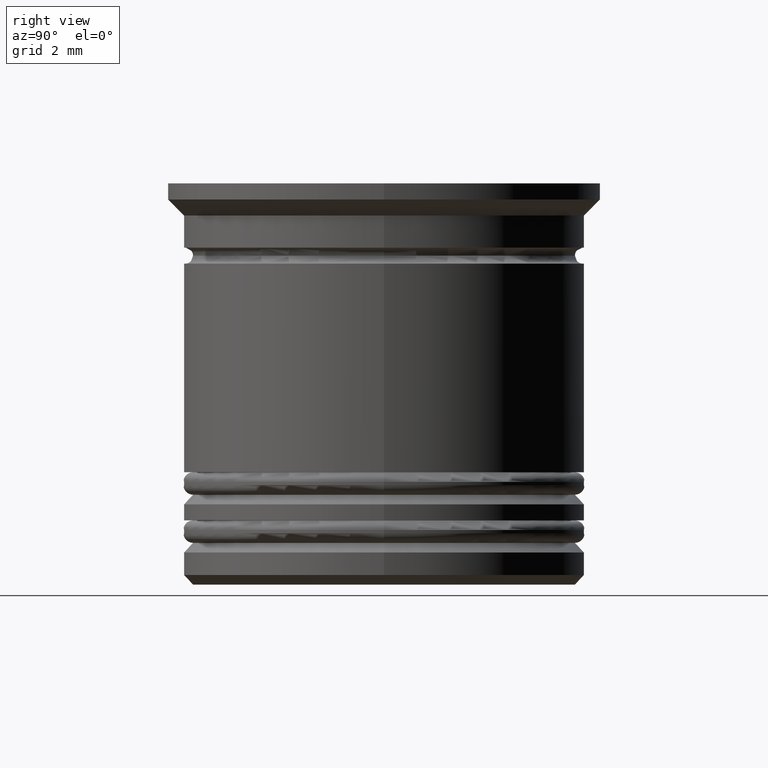
[diagram: clean part render]
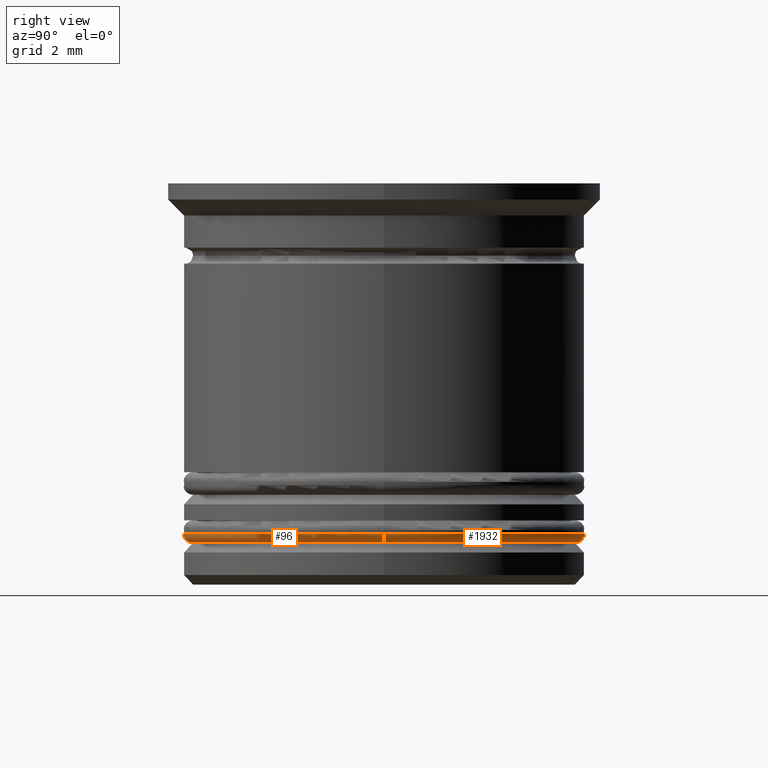
[diagram: same view with one multi-face feature highlighted, each face labeled with its STEP entity id]
A machine part, right view. The highlighted faces form ONE feature: a constant-radius fillet chain: 2 tangent blend faces with common blend radius 0.3 mm. The faces share edges in the B-rep.
Their STEP definitions:
[1] entity #96 (Torus):
#27 = ORIENTED_EDGE ( 'NONE', *, *, #1698, .F. ) ;
#42 = CARTESIAN_POINT ( 'NONE',  ( -6.250000000000000000, 7.654042494670957606E-16, -10.90000000000001101 ) ) ;
#96 = ADVANCED_FACE ( 'NONE', ( #1829 ), #682, .T. ) ;
#160 = DIRECTION ( 'NONE',  ( 0.000000000000000000, 0.000000000000000000, 1.000000000000000000 ) ) ;
#177 = DIRECTION ( 'NONE',  ( 1.000000000000000000, 0.000000000000000000, 0.000000000000000000 ) ) ;
#209 = DIRECTION ( 'NONE',  ( 1.000000000000000000, 0.000000000000000000, 0.000000000000000000 ) ) ;
#263 = AXIS2_PLACEMENT_3D ( 'NONE', #1518, #160, #761 ) ;
#315 = DIRECTION ( 'NONE',  ( 0.000000000000000000, 0.000000000000000000, 1.000000000000000000 ) ) ;
#357 = DIRECTION ( 'NONE',  ( 0.000000000000000000, -1.000000000000000000, 0.000000000000000000 ) ) ;
#399 = VERTEX_POINT ( 'NONE', #932 ) ;
#468 = DIRECTION ( 'NONE',  ( 1.224646799147353207E-16, 1.000000000000000000, -0.000000000000000000 ) ) ;
#495 = EDGE_CURVE ( 'NONE', #1933, #399, #892, .T. ) ;
#511 = CARTESIAN_POINT ( 'NONE',  ( 0.000000000000000000, 0.000000000000000000, -10.90000000000001101 ) ) ;
#588 = CARTESIAN_POINT ( 'NONE',  ( -5.950000000000000178, 7.286648454926751965E-16, -10.90000000000001101 ) ) ;
#616 = CIRCLE ( 'NONE', #1748, 0.2999999999999999334 ) ;
#627 = ORIENTED_EDGE ( 'NONE', *, *, #662, .F. ) ;
#662 = EDGE_CURVE ( 'NONE', #399, #790, #1536, .T. ) ;
#682 = TOROIDAL_SURFACE ( 'NONE', #263, 5.950000000000000178, 0.2999999999999999889 ) ;
#761 = DIRECTION ( 'NONE',  ( 1.000000000000000000, 0.000000000000000000, 0.000000000000000000 ) ) ;
#790 = VERTEX_POINT ( 'NONE', #42 ) ;
#892 = CIRCLE ( 'NONE', #1437, 5.950000000000000178 ) ;
#932 = CARTESIAN_POINT ( 'NONE',  ( -5.950000000000000178, 7.470345474798855279E-16, -11.20000000000000995 ) ) ;
#959 = CIRCLE ( 'NONE', #1544, 6.250000000000000000 ) ;
#984 = EDGE_LOOP ( 'NONE', ( #627, #1595, #1077, #27 ) ) ;
#1077 = ORIENTED_EDGE ( 'NONE', *, *, #1285, .T. ) ;
#1225 = CARTESIAN_POINT ( 'NONE',  ( 6.250000000000000000, 0.000000000000000000, -10.90000000000001101 ) ) ;
#1270 = VERTEX_POINT ( 'NONE', #1225 ) ;
#1285 = EDGE_CURVE ( 'NONE', #1933, #1270, #616, .T. ) ;
#1338 = AXIS2_PLACEMENT_3D ( 'NONE', #588, #468, #1834 ) ;
#1388 = CARTESIAN_POINT ( 'NONE',  ( 5.950000000000000178, 0.000000000000000000, -11.20000000000000995 ) ) ;
#1394 = DIRECTION ( 'NONE',  ( -0.000000000000000000, -0.000000000000000000, -1.000000000000000000 ) ) ;
#1437 = AXIS2_PLACEMENT_3D ( 'NONE', #1696, #1394, #209 ) ;
#1518 = CARTESIAN_POINT ( 'NONE',  ( 0.000000000000000000, 0.000000000000000000, -10.90000000000001101 ) ) ;
#1536 = CIRCLE ( 'NONE', #1338, 0.2999999999999999334 ) ;
#1544 = AXIS2_PLACEMENT_3D ( 'NONE', #511, #315, #177 ) ;
#1590 = DIRECTION ( 'NONE',  ( 0.000000000000000000, 0.000000000000000000, -1.000000000000000000 ) ) ;
#1595 = ORIENTED_EDGE ( 'NONE', *, *, #495, .F. ) ;
#1696 = CARTESIAN_POINT ( 'NONE',  ( 0.000000000000000000, 0.000000000000000000, -11.20000000000000995 ) ) ;
#1698 = EDGE_CURVE ( 'NONE', #790, #1270, #959, .T. ) ;
#1732 = CARTESIAN_POINT ( 'NONE',  ( 5.950000000000000178, 0.000000000000000000, -10.90000000000001101 ) ) ;
#1748 = AXIS2_PLACEMENT_3D ( 'NONE', #1732, #357, #1590 ) ;
#1829 = FACE_OUTER_BOUND ( 'NONE', #984, .T. ) ;
#1834 = DIRECTION ( 'NONE',  ( -1.000000000000000000, 1.224646799147353207E-16, 0.000000000000000000 ) ) ;
#1933 = VERTEX_POINT ( 'NONE', #1388 ) ;
[2] entity #1932 (Torus):
#20 = DIRECTION ( 'NONE',  ( 1.000000000000000000, 0.000000000000000000, 0.000000000000000000 ) ) ;
#42 = CARTESIAN_POINT ( 'NONE',  ( -6.250000000000000000, 7.654042494670957606E-16, -10.90000000000001101 ) ) ;
#166 = CARTESIAN_POINT ( 'NONE',  ( 0.000000000000000000, 0.000000000000000000, -10.90000000000001101 ) ) ;
#357 = DIRECTION ( 'NONE',  ( 0.000000000000000000, -1.000000000000000000, 0.000000000000000000 ) ) ;
#369 = EDGE_CURVE ( 'NONE', #399, #1933, #611, .T. ) ;
#399 = VERTEX_POINT ( 'NONE', #932 ) ;
#468 = DIRECTION ( 'NONE',  ( 1.224646799147353207E-16, 1.000000000000000000, -0.000000000000000000 ) ) ;
#573 = DIRECTION ( 'NONE',  ( -0.000000000000000000, -0.000000000000000000, -1.000000000000000000 ) ) ;
#588 = CARTESIAN_POINT ( 'NONE',  ( -5.950000000000000178, 7.286648454926751965E-16, -10.90000000000001101 ) ) ;
#596 = ORIENTED_EDGE ( 'NONE', *, *, #1105, .F. ) ;
#611 = CIRCLE ( 'NONE', #1370, 5.950000000000000178 ) ;
#615 = DIRECTION ( 'NONE',  ( 0.000000000000000000, 0.000000000000000000, 1.000000000000000000 ) ) ;
#616 = CIRCLE ( 'NONE', #1748, 0.2999999999999999334 ) ;
#643 = ORIENTED_EDGE ( 'NONE', *, *, #1285, .F. ) ;
#662 = EDGE_CURVE ( 'NONE', #399, #790, #1536, .T. ) ;
#790 = VERTEX_POINT ( 'NONE', #42 ) ;
#904 = ORIENTED_EDGE ( 'NONE', *, *, #662, .T. ) ;
#907 = FACE_OUTER_BOUND ( 'NONE', #1052, .T. ) ;
#932 = CARTESIAN_POINT ( 'NONE',  ( -5.950000000000000178, 7.470345474798855279E-16, -11.20000000000000995 ) ) ;
#945 = ORIENTED_EDGE ( 'NONE', *, *, #369, .F. ) ;
#962 = AXIS2_PLACEMENT_3D ( 'NONE', #1990, #615, #20 ) ;
#1033 = DIRECTION ( 'NONE',  ( 1.000000000000000000, 0.000000000000000000, 0.000000000000000000 ) ) ;
#1050 = CIRCLE ( 'NONE', #1182, 6.250000000000000000 ) ;
#1052 = EDGE_LOOP ( 'NONE', ( #945, #904, #596, #643 ) ) ;
#1105 = EDGE_CURVE ( 'NONE', #1270, #790, #1050, .T. ) ;
#1182 = AXIS2_PLACEMENT_3D ( 'NONE', #166, #1333, #1033 ) ;
#1225 = CARTESIAN_POINT ( 'NONE',  ( 6.250000000000000000, 0.000000000000000000, -10.90000000000001101 ) ) ;
#1270 = VERTEX_POINT ( 'NONE', #1225 ) ;
#1285 = EDGE_CURVE ( 'NONE', #1933, #1270, #616, .T. ) ;
#1333 = DIRECTION ( 'NONE',  ( 0.000000000000000000, 0.000000000000000000, 1.000000000000000000 ) ) ;
#1338 = AXIS2_PLACEMENT_3D ( 'NONE', #588, #468, #1834 ) ;
#1370 = AXIS2_PLACEMENT_3D ( 'NONE', #1761, #573, #1652 ) ;
#1388 = CARTESIAN_POINT ( 'NONE',  ( 5.950000000000000178, 0.000000000000000000, -11.20000000000000995 ) ) ;
#1536 = CIRCLE ( 'NONE', #1338, 0.2999999999999999334 ) ;
#1590 = DIRECTION ( 'NONE',  ( 0.000000000000000000, 0.000000000000000000, -1.000000000000000000 ) ) ;
#1652 = DIRECTION ( 'NONE',  ( 1.000000000000000000, 0.000000000000000000, 0.000000000000000000 ) ) ;
#1732 = CARTESIAN_POINT ( 'NONE',  ( 5.950000000000000178, 0.000000000000000000, -10.90000000000001101 ) ) ;
#1748 = AXIS2_PLACEMENT_3D ( 'NONE', #1732, #357, #1590 ) ;
#1761 = CARTESIAN_POINT ( 'NONE',  ( 0.000000000000000000, 0.000000000000000000, -11.20000000000000995 ) ) ;
#1834 = DIRECTION ( 'NONE',  ( -1.000000000000000000, 1.224646799147353207E-16, 0.000000000000000000 ) ) ;
#1872 = TOROIDAL_SURFACE ( 'NONE', #962, 5.950000000000000178, 0.2999999999999999889 ) ;
#1932 = ADVANCED_FACE ( 'NONE', ( #907 ), #1872, .T. ) ;
#1933 = VERTEX_POINT ( 'NONE', #1388 ) ;
#1990 = CARTESIAN_POINT ( 'NONE',  ( 0.000000000000000000, 0.000000000000000000, -10.90000000000001101 ) ) ;